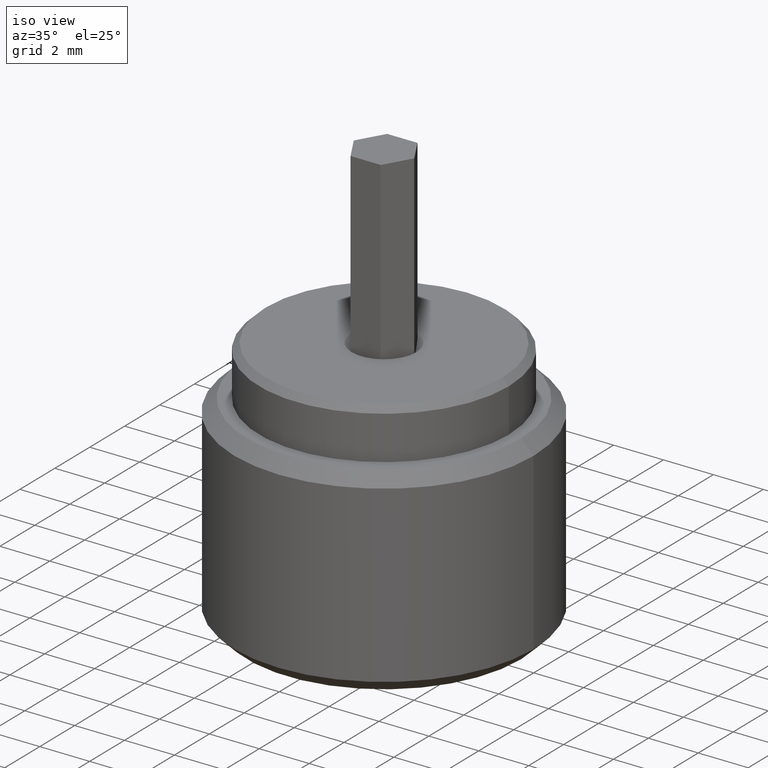
[diagram: clean part render]
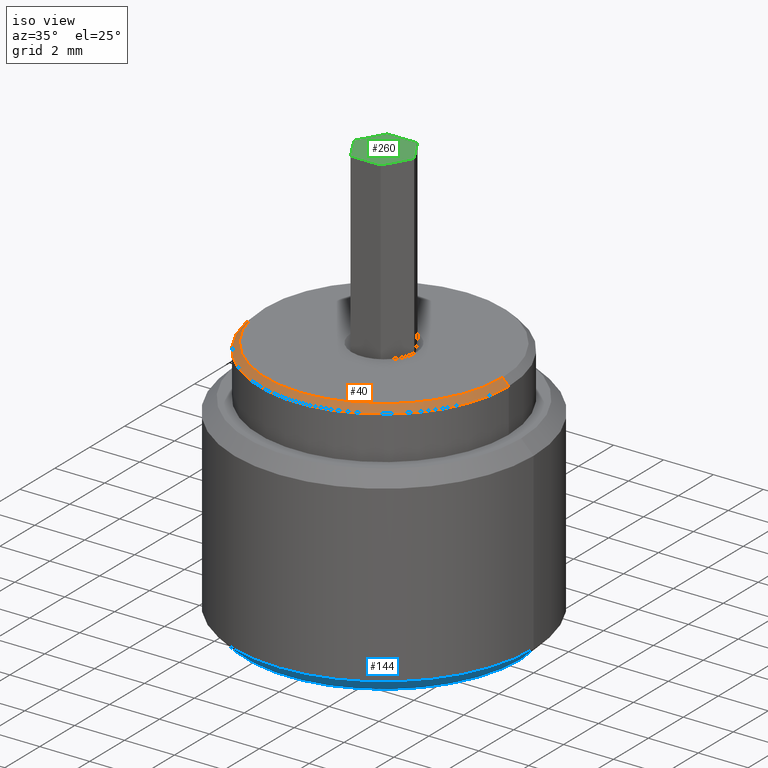
[diagram: same view with three faces highlighted in distinct colors, each labeled with its STEP entity id]
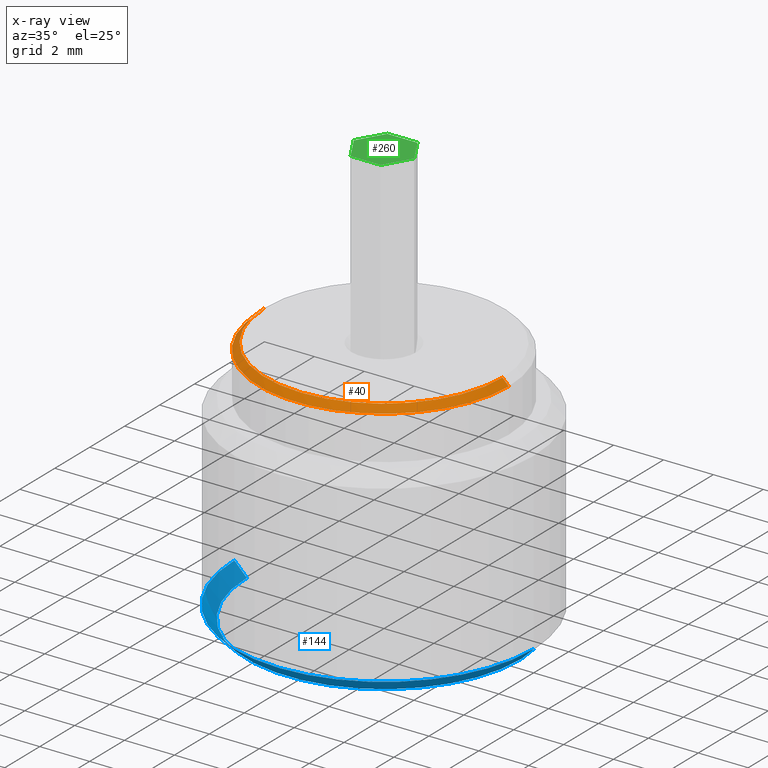
[diagram: x-ray of the same camera — body ghosted, the three highlighted faces saturated]
A machine part, iso view with three faces highlighted in distinct colors.
The next image is the same camera in x-ray (body ghosted, the three faces saturated) — at least one of them is partly hidden behind the body in this view.
Their STEP definitions:

[orange] entity #40 — the highlighted conical surface has half-angle 45 deg.
#23 = LINE ( 'NONE', #858, #922 ) ;
#24 = ORIENTED_EDGE ( 'NONE', *, *, #842, .F. ) ;
#40 = ADVANCED_FACE ( 'NONE', ( #539 ), #882, .T. ) ;
#53 = CARTESIAN_POINT ( 'NONE',  ( -4.750000000000007105, 0.000000000000000000, 10.00000000000000000 ) ) ;
#71 = VERTEX_POINT ( 'NONE', #311 ) ;
#76 = EDGE_LOOP ( 'NONE', ( #717, #847, #175, #24 ) ) ;
#77 = EDGE_CURVE ( 'NONE', #430, #71, #23, .T. ) ;
#111 = DIRECTION ( 'NONE',  ( 1.000000000000000000, 0.000000000000000000, 0.000000000000000000 ) ) ;
#121 = CIRCLE ( 'NONE', #212, 5.000000000000000000 ) ;
#175 = ORIENTED_EDGE ( 'NONE', *, *, #481, .T. ) ;
#178 = CARTESIAN_POINT ( 'NONE',  ( 0.000000000000000000, 0.000000000000000000, 9.750000000000005329 ) ) ;
#186 = DIRECTION ( 'NONE',  ( 0.000000000000000000, 0.000000000000000000, -1.000000000000000000 ) ) ;
#212 = AXIS2_PLACEMENT_3D ( 'NONE', #178, #186, #111 ) ;
#222 = CARTESIAN_POINT ( 'NONE',  ( 0.000000000000000000, 0.000000000000000000, 10.00000000000000178 ) ) ;
#253 = AXIS2_PLACEMENT_3D ( 'NONE', #697, #292, #596 ) ;
#292 = DIRECTION ( 'NONE',  ( 0.000000000000000000, 0.000000000000000000, 1.000000000000000000 ) ) ;
#306 = DIRECTION ( 'NONE',  ( 0.7071067811865451302, 8.659560562354904508E-17, -0.7071067811865500152 ) ) ;
#311 = CARTESIAN_POINT ( 'NONE',  ( 5.000000000000000000, 0.000000000000000000, 9.750000000000005329 ) ) ;
#355 = DIRECTION ( 'NONE',  ( -0.7071067811865451302, 0.000000000000000000, -0.7071067811865500152 ) ) ;
#386 = VERTEX_POINT ( 'NONE', #53 ) ;
#400 = DIRECTION ( 'NONE',  ( -1.000000000000000000, 0.000000000000000000, 0.000000000000000000 ) ) ;
#430 = VERTEX_POINT ( 'NONE', #653 ) ;
#481 = EDGE_CURVE ( 'NONE', #386, #618, #820, .T. ) ;
#539 = FACE_OUTER_BOUND ( 'NONE', #76, .T. ) ;
#596 = DIRECTION ( 'NONE',  ( 1.000000000000000000, 0.000000000000000000, 0.000000000000000000 ) ) ;
#613 = CIRCLE ( 'NONE', #253, 4.750000000000007105 ) ;
#614 = AXIS2_PLACEMENT_3D ( 'NONE', #222, #915, #400 ) ;
#618 = VERTEX_POINT ( 'NONE', #857 ) ;
#653 = CARTESIAN_POINT ( 'NONE',  ( 4.750000000000007105, 5.970153145843351291E-16, 10.00000000000000000 ) ) ;
#697 = CARTESIAN_POINT ( 'NONE',  ( 0.000000000000000000, 0.000000000000000000, 10.00000000000000000 ) ) ;
#717 = ORIENTED_EDGE ( 'NONE', *, *, #77, .F. ) ;
#733 = EDGE_CURVE ( 'NONE', #386, #430, #613, .T. ) ;
#820 = LINE ( 'NONE', #964, #958 ) ;
#842 = EDGE_CURVE ( 'NONE', #71, #618, #121, .T. ) ;
#847 = ORIENTED_EDGE ( 'NONE', *, *, #733, .F. ) ;
#857 = CARTESIAN_POINT ( 'NONE',  ( -5.000000000000000000, 6.123233995736765296E-16, 9.750000000000005329 ) ) ;
#858 = CARTESIAN_POINT ( 'NONE',  ( 4.750000000000005329, 5.817072295949934328E-16, 10.00000000000000178 ) ) ;
#882 = CONICAL_SURFACE ( 'NONE', #614, 4.750000000000005329, 0.7853981633974447263 ) ;
#915 = DIRECTION ( 'NONE',  ( 0.000000000000000000, 0.000000000000000000, -1.000000000000000000 ) ) ;
#922 = VECTOR ( 'NONE', #306, 1000.000000000000114 ) ;
#958 = VECTOR ( 'NONE', #355, 1000.000000000000114 ) ;
#964 = CARTESIAN_POINT ( 'NONE',  ( -4.750000000000005329, 0.000000000000000000, 10.00000000000000178 ) ) ;

[blue] entity #144 — the highlighted conical surface has half-angle 45 deg.
#63 = VERTEX_POINT ( 'NONE', #472 ) ;
#101 = VERTEX_POINT ( 'NONE', #774 ) ;
#106 = DIRECTION ( 'NONE',  ( 0.7071067811865487940, 0.000000000000000000, 0.7071067811865463515 ) ) ;
#113 = EDGE_CURVE ( 'NONE', #63, #545, #373, .T. ) ;
#118 = CARTESIAN_POINT ( 'NONE',  ( 6.000000000000000888, 0.000000000000000000, 0.4999999999999987232 ) ) ;
#129 = EDGE_CURVE ( 'NONE', #931, #101, #278, .T. ) ;
#144 = ADVANCED_FACE ( 'NONE', ( #162 ), #944, .T. ) ;
#150 = DIRECTION ( 'NONE',  ( -0.000000000000000000, -0.000000000000000000, -1.000000000000000000 ) ) ;
#156 = DIRECTION ( 'NONE',  ( 1.000000000000000000, 0.000000000000000000, 0.000000000000000000 ) ) ;
#162 = FACE_OUTER_BOUND ( 'NONE', #305, .T. ) ;
#244 = CARTESIAN_POINT ( 'NONE',  ( 6.000000000000000888, 7.347880794884120722E-16, 0.4999999999999987232 ) ) ;
#262 = ORIENTED_EDGE ( 'NONE', *, *, #300, .T. ) ;
#270 = DIRECTION ( 'NONE',  ( 1.000000000000000000, 0.000000000000000000, 0.000000000000000000 ) ) ;
#278 = CIRCLE ( 'NONE', #778, 5.500000000000000888 ) ;
#300 = EDGE_CURVE ( 'NONE', #931, #545, #787, .T. ) ;
#305 = EDGE_LOOP ( 'NONE', ( #869, #752, #262, #684 ) ) ;
#373 = CIRCLE ( 'NONE', #742, 6.000000000000000888 ) ;
#375 = DIRECTION ( 'NONE',  ( -0.7071067811865487940, 8.659560562354950115E-17, 0.7071067811865463515 ) ) ;
#436 = VECTOR ( 'NONE', #375, 1000.000000000000000 ) ;
#451 = DIRECTION ( 'NONE',  ( 1.000000000000000000, 0.000000000000000000, 0.000000000000000000 ) ) ;
#459 = DIRECTION ( 'NONE',  ( -0.000000000000000000, -0.000000000000000000, 1.000000000000000000 ) ) ;
#472 = CARTESIAN_POINT ( 'NONE',  ( -6.000000000000000888, 0.000000000000000000, 0.4999999999999987232 ) ) ;
#543 = CARTESIAN_POINT ( 'NONE',  ( -6.000000000000000888, 7.347880794884120722E-16, 0.4999999999999987232 ) ) ;
#545 = VERTEX_POINT ( 'NONE', #244 ) ;
#557 = CARTESIAN_POINT ( 'NONE',  ( 5.500000000000000888, 0.000000000000000000, 0.000000000000000000 ) ) ;
#567 = VECTOR ( 'NONE', #106, 1000.000000000000000 ) ;
#606 = EDGE_CURVE ( 'NONE', #101, #63, #841, .T. ) ;
#680 = CARTESIAN_POINT ( 'NONE',  ( 0.000000000000000000, 0.000000000000000000, 0.4999999999999987232 ) ) ;
#684 = ORIENTED_EDGE ( 'NONE', *, *, #113, .F. ) ;
#698 = DIRECTION ( 'NONE',  ( -0.000000000000000000, -0.000000000000000000, 1.000000000000000000 ) ) ;
#742 = AXIS2_PLACEMENT_3D ( 'NONE', #848, #698, #156 ) ;
#752 = ORIENTED_EDGE ( 'NONE', *, *, #129, .F. ) ;
#774 = CARTESIAN_POINT ( 'NONE',  ( -5.500000000000000888, 7.041719095097281866E-16, 0.000000000000000000 ) ) ;
#778 = AXIS2_PLACEMENT_3D ( 'NONE', #935, #150, #451 ) ;
#787 = LINE ( 'NONE', #118, #567 ) ;
#841 = LINE ( 'NONE', #543, #436 ) ;
#848 = CARTESIAN_POINT ( 'NONE',  ( 0.000000000000000000, 0.000000000000000000, 0.4999999999999987232 ) ) ;
#869 = ORIENTED_EDGE ( 'NONE', *, *, #606, .F. ) ;
#903 = AXIS2_PLACEMENT_3D ( 'NONE', #680, #459, #270 ) ;
#931 = VERTEX_POINT ( 'NONE', #557 ) ;
#935 = CARTESIAN_POINT ( 'NONE',  ( 0.000000000000000000, 0.000000000000000000, 0.000000000000000000 ) ) ;
#944 = CONICAL_SURFACE ( 'NONE', #903, 6.000000000000000888, 0.7853981633974500554 ) ;

[green] entity #260 — the highlighted planar face has unit normal (0, 0, 1).
#22 = LINE ( 'NONE', #627, #420 ) ;
#41 = CARTESIAN_POINT ( 'NONE',  ( 0.6062177826491048638, -1.050000000000002265, 17.00000000000000000 ) ) ;
#45 = FACE_OUTER_BOUND ( 'NONE', #166, .T. ) ;
#69 = VECTOR ( 'NONE', #195, 1000.000000000000114 ) ;
#94 = VERTEX_POINT ( 'NONE', #393 ) ;
#108 = VECTOR ( 'NONE', #953, 1000.000000000000000 ) ;
#145 = VERTEX_POINT ( 'NONE', #41 ) ;
#166 = EDGE_LOOP ( 'NONE', ( #905, #392, #725, #234, #936, #335 ) ) ;
#193 = PLANE ( 'NONE',  #663 ) ;
#195 = DIRECTION ( 'NONE',  ( -0.4999999999999977240, 0.8660254037844398178, 0.000000000000000000 ) ) ;
#204 = VERTEX_POINT ( 'NONE', #571 ) ;
#234 = ORIENTED_EDGE ( 'NONE', *, *, #273, .T. ) ;
#250 = DIRECTION ( 'NONE',  ( 0.5000000000000018874, 0.8660254037844375974, 0.000000000000000000 ) ) ;
#257 = CARTESIAN_POINT ( 'NONE',  ( 1.212435565298214390, -3.035766082959412415E-15, 17.00000000000000000 ) ) ;
#258 = CARTESIAN_POINT ( 'NONE',  ( 0.000000000000000000, 0.000000000000000000, 17.00000000000000000 ) ) ;
#259 = LINE ( 'NONE', #642, #108 ) ;
#260 = ADVANCED_FACE ( 'NONE', ( #45 ), #193, .T. ) ;
#261 = CARTESIAN_POINT ( 'NONE',  ( 0.6062177826491099708, 1.049999999999998934, 17.00000000000000000 ) ) ;
#264 = LINE ( 'NONE', #563, #310 ) ;
#273 = EDGE_CURVE ( 'NONE', #510, #446, #954, .T. ) ;
#299 = EDGE_CURVE ( 'NONE', #324, #204, #492, .T. ) ;
#310 = VECTOR ( 'NONE', #881, 1000.000000000000000 ) ;
#324 = VERTEX_POINT ( 'NONE', #727 ) ;
#335 = ORIENTED_EDGE ( 'NONE', *, *, #960, .T. ) ;
#336 = LINE ( 'NONE', #257, #69 ) ;
#392 = ORIENTED_EDGE ( 'NONE', *, *, #299, .T. ) ;
#393 = CARTESIAN_POINT ( 'NONE',  ( 1.212435565298214390, -3.035766082959412415E-15, 17.00000000000000000 ) ) ;
#420 = VECTOR ( 'NONE', #250, 1000.000000000000000 ) ;
#446 = VERTEX_POINT ( 'NONE', #588 ) ;
#483 = CARTESIAN_POINT ( 'NONE',  ( -1.212435565298213946, 2.475030271877065591E-15, 17.00000000000000000 ) ) ;
#492 = LINE ( 'NONE', #261, #678 ) ;
#510 = VERTEX_POINT ( 'NONE', #829 ) ;
#558 = DIRECTION ( 'NONE',  ( 1.000000000000000000, 0.000000000000000000, -0.000000000000000000 ) ) ;
#563 = CARTESIAN_POINT ( 'NONE',  ( -0.6062177826491047528, 1.050000000000001821, 17.00000000000000000 ) ) ;
#571 = CARTESIAN_POINT ( 'NONE',  ( -0.6062177826491047528, 1.050000000000001821, 17.00000000000000000 ) ) ;
#588 = CARTESIAN_POINT ( 'NONE',  ( -0.6062177826491091936, -1.049999999999999600, 17.00000000000000000 ) ) ;
#627 = CARTESIAN_POINT ( 'NONE',  ( 0.6062177826491048638, -1.050000000000002265, 17.00000000000000000 ) ) ;
#642 = CARTESIAN_POINT ( 'NONE',  ( -0.6062177826491091936, -1.049999999999999600, 17.00000000000000000 ) ) ;
#645 = DIRECTION ( 'NONE',  ( 0.000000000000000000, 0.000000000000000000, 1.000000000000000000 ) ) ;
#663 = AXIS2_PLACEMENT_3D ( 'NONE', #258, #645, #558 ) ;
#678 = VECTOR ( 'NONE', #793, 1000.000000000000000 ) ;
#725 = ORIENTED_EDGE ( 'NONE', *, *, #949, .T. ) ;
#727 = CARTESIAN_POINT ( 'NONE',  ( 0.6062177826491099708, 1.049999999999998934, 17.00000000000000000 ) ) ;
#793 = DIRECTION ( 'NONE',  ( -1.000000000000000000, 2.503857664561930996E-15, 0.000000000000000000 ) ) ;
#804 = DIRECTION ( 'NONE',  ( 0.4999999999999978906, -0.8660254037844397068, 0.000000000000000000 ) ) ;
#829 = CARTESIAN_POINT ( 'NONE',  ( -1.212435565298213946, 2.475030271877065591E-15, 17.00000000000000000 ) ) ;
#881 = DIRECTION ( 'NONE',  ( -0.5000000000000015543, -0.8660254037844378194, 0.000000000000000000 ) ) ;
#905 = ORIENTED_EDGE ( 'NONE', *, *, #929, .T. ) ;
#923 = VECTOR ( 'NONE', #804, 1000.000000000000227 ) ;
#929 = EDGE_CURVE ( 'NONE', #94, #324, #336, .T. ) ;
#933 = EDGE_CURVE ( 'NONE', #446, #145, #259, .T. ) ;
#936 = ORIENTED_EDGE ( 'NONE', *, *, #933, .T. ) ;
#949 = EDGE_CURVE ( 'NONE', #204, #510, #264, .T. ) ;
#953 = DIRECTION ( 'NONE',  ( 1.000000000000000000, -2.325010688521794335E-15, 0.000000000000000000 ) ) ;
#954 = LINE ( 'NONE', #483, #923 ) ;
#960 = EDGE_CURVE ( 'NONE', #145, #94, #22, .T. ) ;